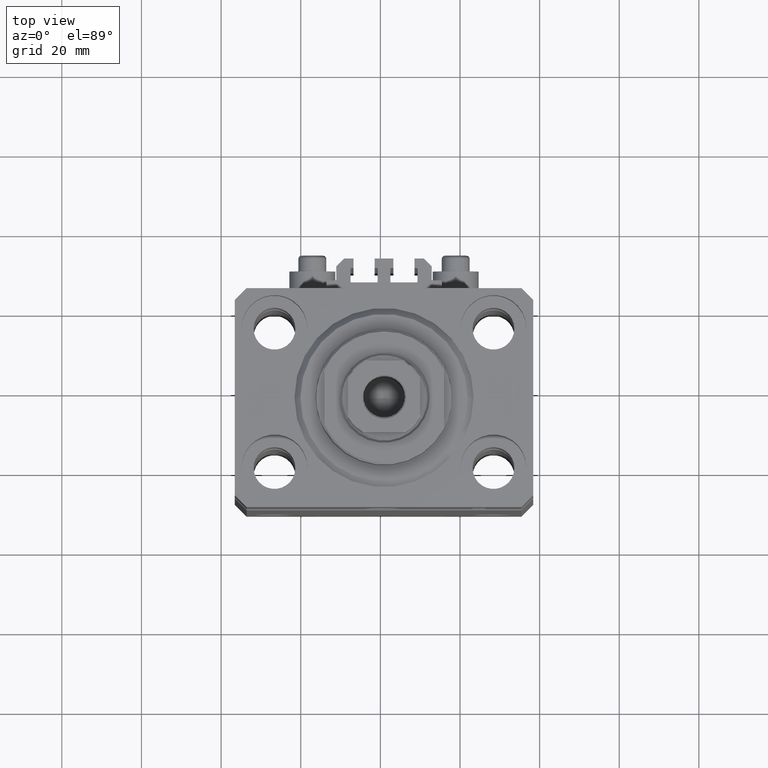
[diagram: clean part render]
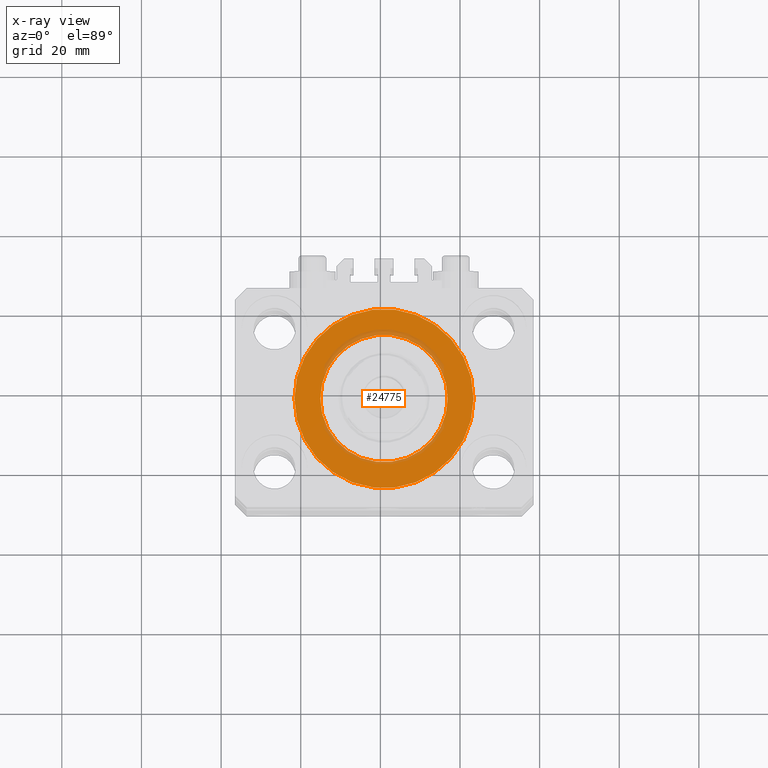
[diagram: x-ray — body ghosted, one internal face saturated and labeled with its STEP entity id]
A machine part, top view, then the same camera in x-ray: the body is ghosted and one INTERNAL B-rep face — a face not visible from any outside direction — is saturated and labeled: STEP entity #24775.
In plain terms, the highlighted planar face has unit normal (0, 0, 1).
Its self-contained STEP definition (entity closure, byte-faithful):
#3722 = EDGE_CURVE ( 'NONE', #36273, #11557, #17975, .T. ) ;
#4152 = DIRECTION ( 'NONE',  ( 1.000000000000000000, 0.000000000000000000, 0.000000000000000000 ) ) ;
#5124 = DIRECTION ( 'NONE',  ( 0.000000000000000000, 0.000000000000000000, 1.000000000000000000 ) ) ;
#5263 = CARTESIAN_POINT ( 'NONE',  ( 22.50000000000000355, 0.000000000000000000, -15.00000000000000000 ) ) ;
#7066 = ORIENTED_EDGE ( 'NONE', *, *, #29780, .F. ) ;
#8057 = AXIS2_PLACEMENT_3D ( 'NONE', #37805, #19170, #4152 ) ;
#8158 = CARTESIAN_POINT ( 'NONE',  ( 0.000000000000000000, 0.000000000000000000, -15.00000000000000000 ) ) ;
#8274 = EDGE_LOOP ( 'NONE', ( #22501, #7066 ) ) ;
#9982 = AXIS2_PLACEMENT_3D ( 'NONE', #11153, #15268, #22531 ) ;
#9989 = FACE_OUTER_BOUND ( 'NONE', #14804, .T. ) ;
#10908 = EDGE_CURVE ( 'NONE', #12853, #47079, #12689, .T. ) ;
#10956 = CARTESIAN_POINT ( 'NONE',  ( -16.00000000000000000, 1.959434878635765131E-15, -15.00000000000000000 ) ) ;
#11153 = CARTESIAN_POINT ( 'NONE',  ( 0.000000000000000000, 0.000000000000000000, -15.00000000000000000 ) ) ;
#11366 = CARTESIAN_POINT ( 'NONE',  ( 0.000000000000000000, 0.000000000000000000, -15.00000000000000000 ) ) ;
#11557 = VERTEX_POINT ( 'NONE', #10956 ) ;
#12080 = CARTESIAN_POINT ( 'NONE',  ( -22.50000000000000355, 2.755455298081545172E-15, -15.00000000000000000 ) ) ;
#12689 = CIRCLE ( 'NONE', #8057, 22.50000000000000355 ) ;
#12853 = VERTEX_POINT ( 'NONE', #12080 ) ;
#14804 = EDGE_LOOP ( 'NONE', ( #32917, #28683 ) ) ;
#15268 = DIRECTION ( 'NONE',  ( 0.000000000000000000, 0.000000000000000000, 1.000000000000000000 ) ) ;
#16995 = CIRCLE ( 'NONE', #24711, 16.00000000000000000 ) ;
#17889 = CARTESIAN_POINT ( 'NONE',  ( 0.000000000000000000, 0.000000000000000000, -15.00000000000000000 ) ) ;
#17975 = CIRCLE ( 'NONE', #20175, 16.00000000000000000 ) ;
#18177 = DIRECTION ( 'NONE',  ( 0.000000000000000000, 0.000000000000000000, 1.000000000000000000 ) ) ;
#19170 = DIRECTION ( 'NONE',  ( 0.000000000000000000, 0.000000000000000000, 1.000000000000000000 ) ) ;
#20175 = AXIS2_PLACEMENT_3D ( 'NONE', #8158, #22925, #37703 ) ;
#22501 = ORIENTED_EDGE ( 'NONE', *, *, #3722, .F. ) ;
#22531 = DIRECTION ( 'NONE',  ( 1.000000000000000000, 0.000000000000000000, -0.000000000000000000 ) ) ;
#22925 = DIRECTION ( 'NONE',  ( 0.000000000000000000, 0.000000000000000000, 1.000000000000000000 ) ) ;
#24711 = AXIS2_PLACEMENT_3D ( 'NONE', #11366, #18177, #43843 ) ;
#24775 = ADVANCED_FACE ( 'NONE', ( #43158, #9989 ), #41641, .T. ) ;
#25464 = CARTESIAN_POINT ( 'NONE',  ( 16.00000000000000000, 0.000000000000000000, -15.00000000000000000 ) ) ;
#28683 = ORIENTED_EDGE ( 'NONE', *, *, #10908, .T. ) ;
#28715 = EDGE_CURVE ( 'NONE', #47079, #12853, #34715, .T. ) ;
#29780 = EDGE_CURVE ( 'NONE', #11557, #36273, #16995, .T. ) ;
#32917 = ORIENTED_EDGE ( 'NONE', *, *, #28715, .T. ) ;
#34715 = CIRCLE ( 'NONE', #35516, 22.50000000000000355 ) ;
#35516 = AXIS2_PLACEMENT_3D ( 'NONE', #17889, #5124, #36285 ) ;
#36273 = VERTEX_POINT ( 'NONE', #25464 ) ;
#36285 = DIRECTION ( 'NONE',  ( 1.000000000000000000, 0.000000000000000000, 0.000000000000000000 ) ) ;
#37703 = DIRECTION ( 'NONE',  ( 1.000000000000000000, 0.000000000000000000, 0.000000000000000000 ) ) ;
#37805 = CARTESIAN_POINT ( 'NONE',  ( 0.000000000000000000, 0.000000000000000000, -15.00000000000000000 ) ) ;
#41641 = PLANE ( 'NONE',  #9982 ) ;
#43158 = FACE_BOUND ( 'NONE', #8274, .T. ) ;
#43843 = DIRECTION ( 'NONE',  ( 1.000000000000000000, 0.000000000000000000, 0.000000000000000000 ) ) ;
#47079 = VERTEX_POINT ( 'NONE', #5263 ) ;